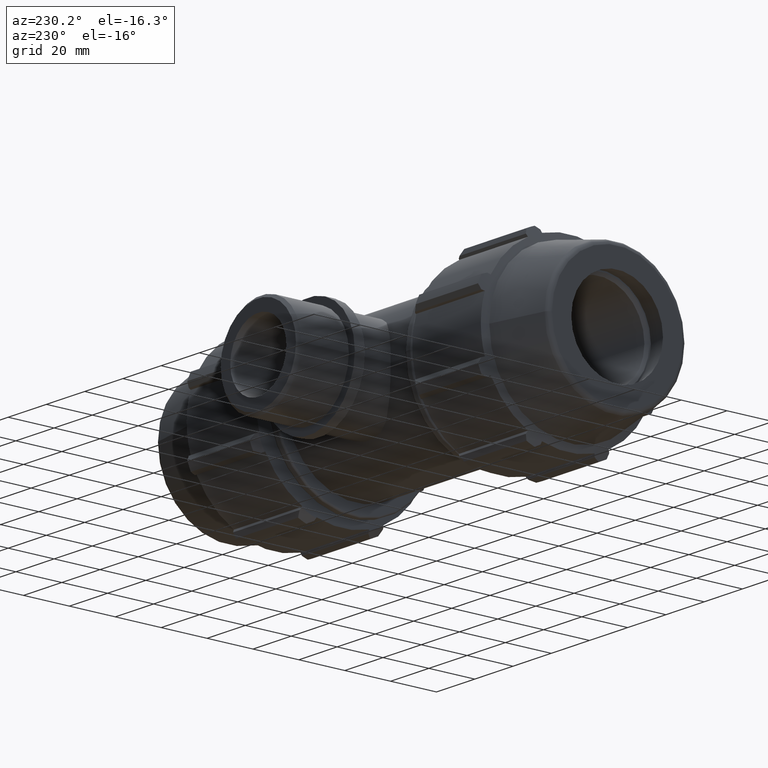
[diagram: clean part render]
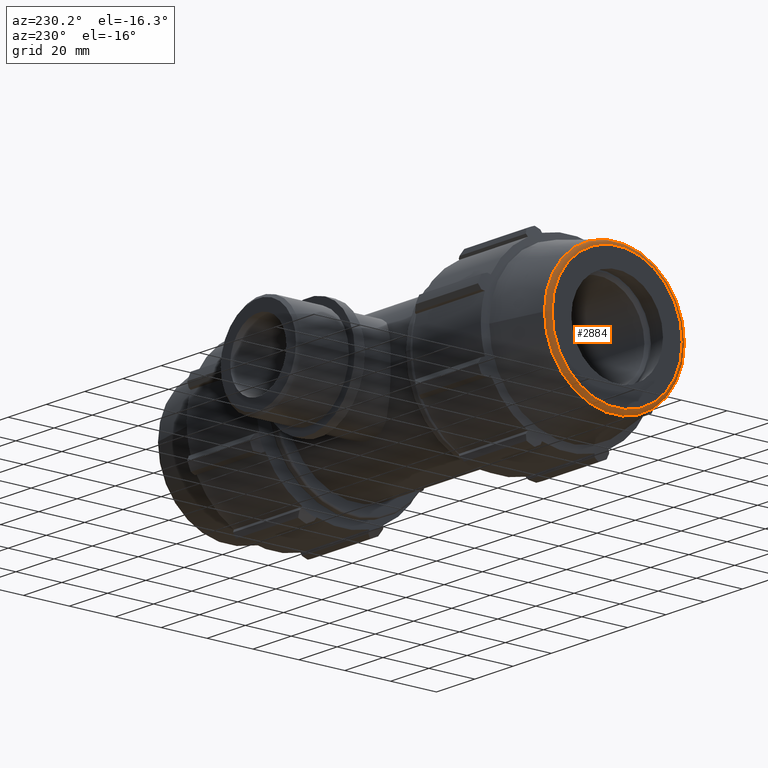
[diagram: same view with one face highlighted and labeled with its STEP entity id]
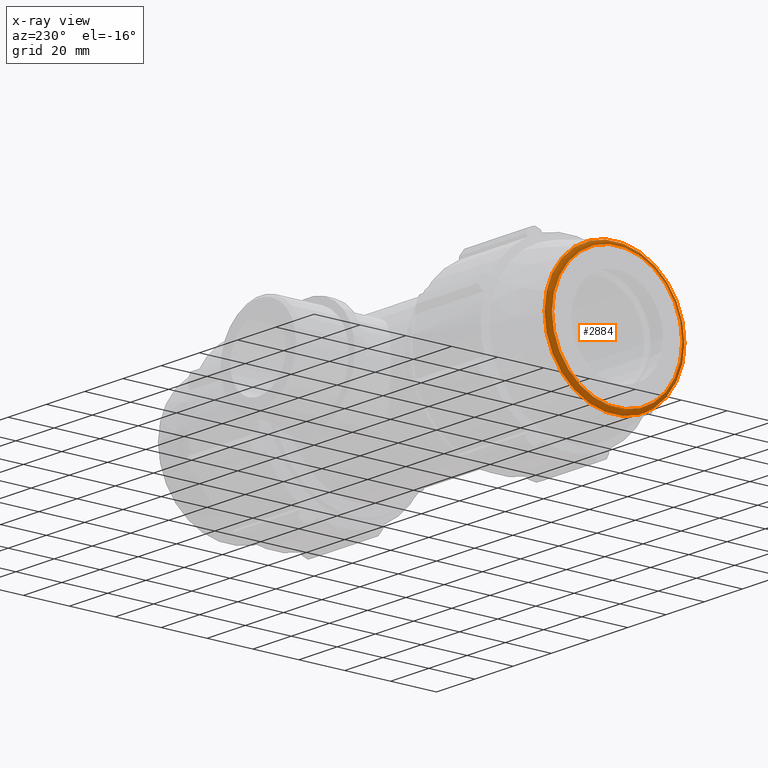
[diagram: x-ray of the same camera — body ghosted, the highlighted face saturated]
A machine part, auxiliary view. The second image highlights one B-rep face of the part: STEP entity #2884.
The next image is the same camera in x-ray: the body ghosted, the highlighted face saturated — about 0% of this face is hidden behind the body in this view.
In plain terms, the highlighted toroidal blend (fillet) surface has major radius 28.3804 mm and minor (blend) radius 2 mm.
Its self-contained STEP definition (entity closure, byte-faithful):
#17=TOROIDAL_SURFACE('',#3101,28.38043193361,2.);
#220=CIRCLE('',#3102,30.3367271350776);
#221=CIRCLE('',#3103,28.38043193361);
#725=FACE_BOUND('',#1001,.T.);
#827=FACE_OUTER_BOUND('',#1000,.T.);
#1000=EDGE_LOOP('',(#2169));
#1001=EDGE_LOOP('',(#2170));
#1265=VERTEX_POINT('',#4582);
#1266=VERTEX_POINT('',#4584);
#1599=EDGE_CURVE('',#1265,#1265,#220,.T.);
#1600=EDGE_CURVE('',#1266,#1266,#221,.T.);
#2169=ORIENTED_EDGE('',*,*,#1599,.F.);
#2170=ORIENTED_EDGE('',*,*,#1600,.F.);
#2884=ADVANCED_FACE('',(#827,#725),#17,.T.);
#3101=AXIS2_PLACEMENT_3D('',#4581,#3605,#3606);
#3102=AXIS2_PLACEMENT_3D('',#4583,#3607,#3608);
#3103=AXIS2_PLACEMENT_3D('',#4585,#3609,#3610);
#3605=DIRECTION('center_axis',(-1.,5.30313939382931E-16,0.));
#3606=DIRECTION('ref_axis',(0.,0.,-1.));
#3607=DIRECTION('center_axis',(1.,-5.85546631807323E-16,4.69358168303472E-32));
#3608=DIRECTION('ref_axis',(-5.85546631807323E-16,-1.,3.06161699786838E-17));
#3609=DIRECTION('center_axis',(-1.,5.30313939382931E-16,0.));
#3610=DIRECTION('ref_axis',(-5.30313939382931E-16,-1.,1.83697019872103E-16));
#4581=CARTESIAN_POINT('Origin',(-100.5,5.32965509079845E-14,0.));
#4582=CARTESIAN_POINT('',(-100.915823381636,30.3367271350777,-1.85758878912897E-15));
#4583=CARTESIAN_POINT('Origin',(-100.915823381636,5.10702591327572E-14,
-4.64397197282243E-15));
#4584=CARTESIAN_POINT('',(-102.5,28.38043193361,-8.6890012814787E-15));
#4585=CARTESIAN_POINT('Origin',(-102.5,5.43571787867504E-14,0.));